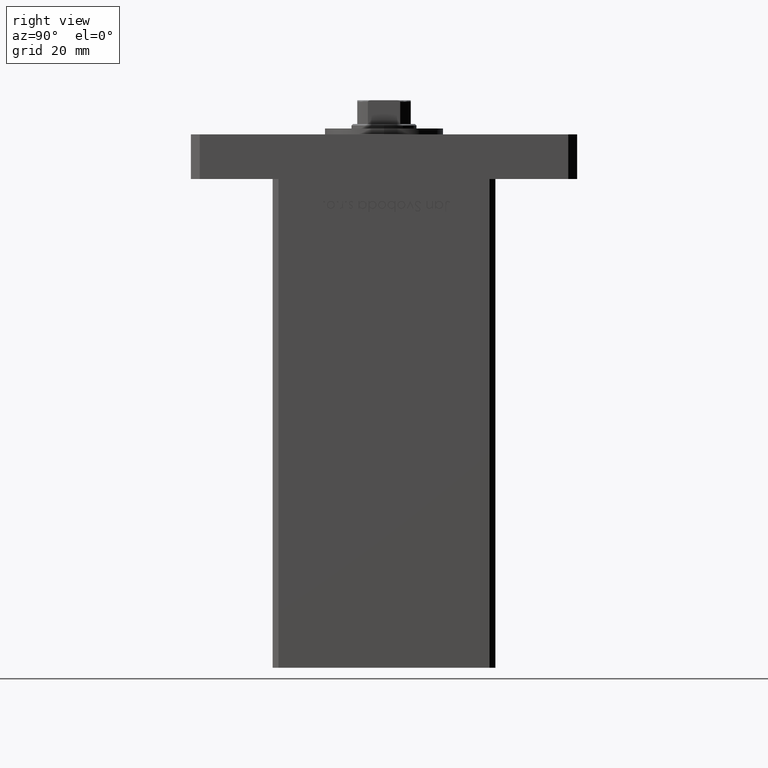
[diagram: clean part render]
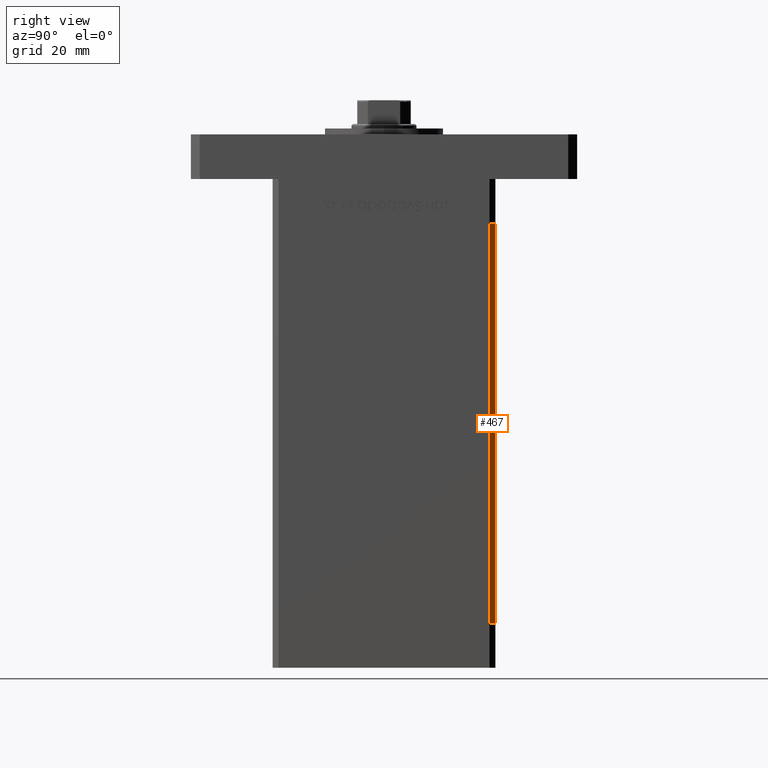
[diagram: same view with one face highlighted and labeled with its STEP entity id]
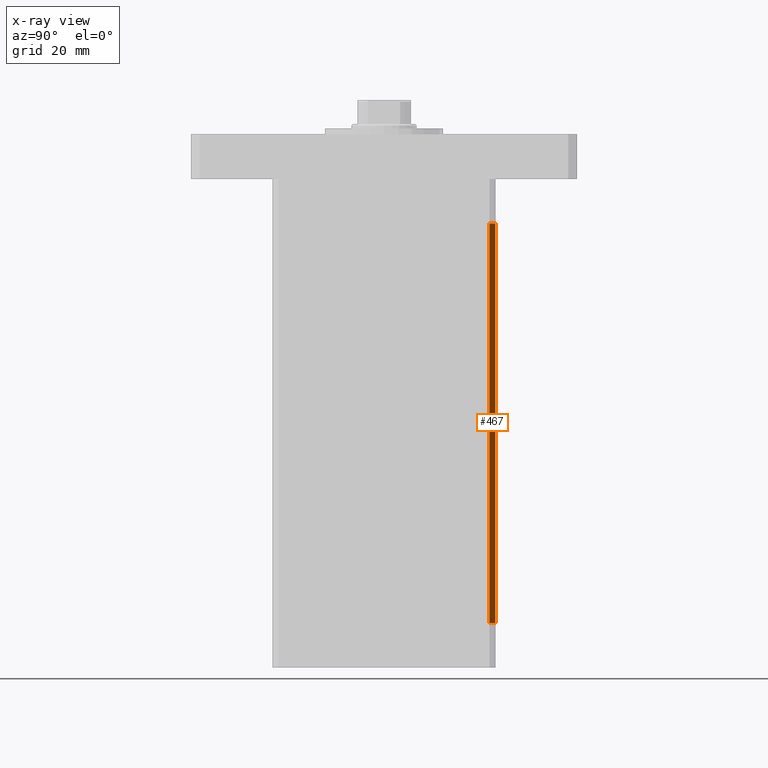
[diagram: x-ray of the same camera — body ghosted, the highlighted face saturated]
A machine part, right view. The second image highlights one B-rep face of the part: STEP entity #467.
The next image is the same camera in x-ray: the body ghosted, the highlighted face saturated — about 0% of this face is hidden behind the body in this view.
In plain terms, the highlighted planar face has unit normal (0.7071, 0.7071, 0).
Its self-contained STEP definition (entity closure, byte-faithful):
#467 = ADVANCED_FACE ( 'NONE', ( #35777 ), #36582, .T. ) ;
#3626 = ORIENTED_EDGE ( 'NONE', *, *, #30028, .F. ) ;
#5207 = CARTESIAN_POINT ( 'NONE',  ( 42.50000000000000711, 35.50000000000001421, 134.5000000000000000 ) ) ;
#9831 = LINE ( 'NONE', #42637, #27464 ) ;
#10664 = CARTESIAN_POINT ( 'NONE',  ( 40.50000000000000000, 37.50000000000000711, 134.5000000000000000 ) ) ;
#12063 = DIRECTION ( 'NONE',  ( 0.7071067811865500152, -0.7071067811865451302, 0.000000000000000000 ) ) ;
#13888 = DIRECTION ( 'NONE',  ( -0.000000000000000000, -0.000000000000000000, -1.000000000000000000 ) ) ;
#14906 = DIRECTION ( 'NONE',  ( -0.7071067811865500152, 0.7071067811865451302, 0.000000000000000000 ) ) ;
#16360 = VERTEX_POINT ( 'NONE', #35091 ) ;
#18901 = CARTESIAN_POINT ( 'NONE',  ( 40.50000000000000000, 37.50000000000000711, 134.5000000000000000 ) ) ;
#20959 = DIRECTION ( 'NONE',  ( 0.7071067811865500152, -0.7071067811865451302, 0.000000000000000000 ) ) ;
#21805 = ORIENTED_EDGE ( 'NONE', *, *, #36940, .T. ) ;
#27039 = AXIS2_PLACEMENT_3D ( 'NONE', #47996, #32525, #14906 ) ;
#27464 = VECTOR ( 'NONE', #20959, 1000.000000000000114 ) ;
#29289 = CARTESIAN_POINT ( 'NONE',  ( 42.50000000000000711, 35.50000000000001421, 134.5000000000000000 ) ) ;
#29490 = CARTESIAN_POINT ( 'NONE',  ( 42.50000000000000711, 35.50000000000001421, 0.000000000000000000 ) ) ;
#30028 = EDGE_CURVE ( 'NONE', #44224, #16360, #35440, .T. ) ;
#30543 = EDGE_LOOP ( 'NONE', ( #30552, #3626, #38688, #21805 ) ) ;
#30552 = ORIENTED_EDGE ( 'NONE', *, *, #34496, .F. ) ;
#30661 = VECTOR ( 'NONE', #12063, 1000.000000000000114 ) ;
#31649 = DIRECTION ( 'NONE',  ( -0.000000000000000000, -0.000000000000000000, -1.000000000000000000 ) ) ;
#32525 = DIRECTION ( 'NONE',  ( 0.7071067811865451302, 0.7071067811865500152, -0.000000000000000000 ) ) ;
#34496 = EDGE_CURVE ( 'NONE', #16360, #40295, #49215, .T. ) ;
#35091 = CARTESIAN_POINT ( 'NONE',  ( 40.50000000000000000, 37.50000000000000711, 0.000000000000000000 ) ) ;
#35440 = LINE ( 'NONE', #18901, #43514 ) ;
#35777 = FACE_OUTER_BOUND ( 'NONE', #30543, .T. ) ;
#36582 = PLANE ( 'NONE',  #27039 ) ;
#36940 = EDGE_CURVE ( 'NONE', #37089, #40295, #38027, .T. ) ;
#37089 = VERTEX_POINT ( 'NONE', #29289 ) ;
#38027 = LINE ( 'NONE', #5207, #47164 ) ;
#38688 = ORIENTED_EDGE ( 'NONE', *, *, #47551, .T. ) ;
#40295 = VERTEX_POINT ( 'NONE', #29490 ) ;
#42637 = CARTESIAN_POINT ( 'NONE',  ( 40.50000000000000000, 37.50000000000000711, 134.5000000000000000 ) ) ;
#43514 = VECTOR ( 'NONE', #31649, 1000.000000000000000 ) ;
#43812 = CARTESIAN_POINT ( 'NONE',  ( 40.50000000000000000, 37.50000000000000711, 0.000000000000000000 ) ) ;
#44224 = VERTEX_POINT ( 'NONE', #10664 ) ;
#47164 = VECTOR ( 'NONE', #13888, 1000.000000000000000 ) ;
#47551 = EDGE_CURVE ( 'NONE', #44224, #37089, #9831, .T. ) ;
#47996 = CARTESIAN_POINT ( 'NONE',  ( 40.50000000000000000, 37.50000000000000711, 134.5000000000000000 ) ) ;
#49215 = LINE ( 'NONE', #43812, #30661 ) ;